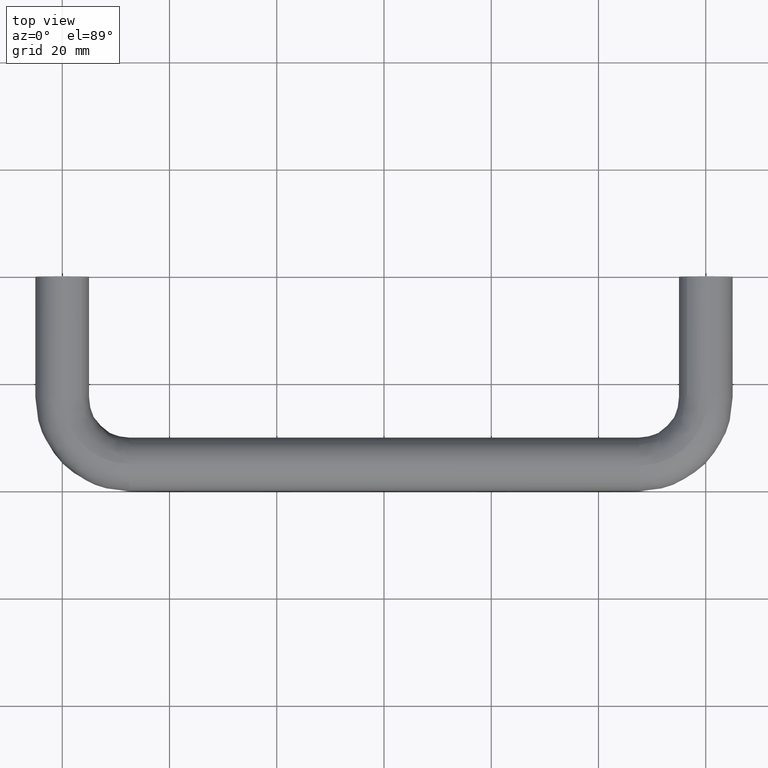
[diagram: clean part render]
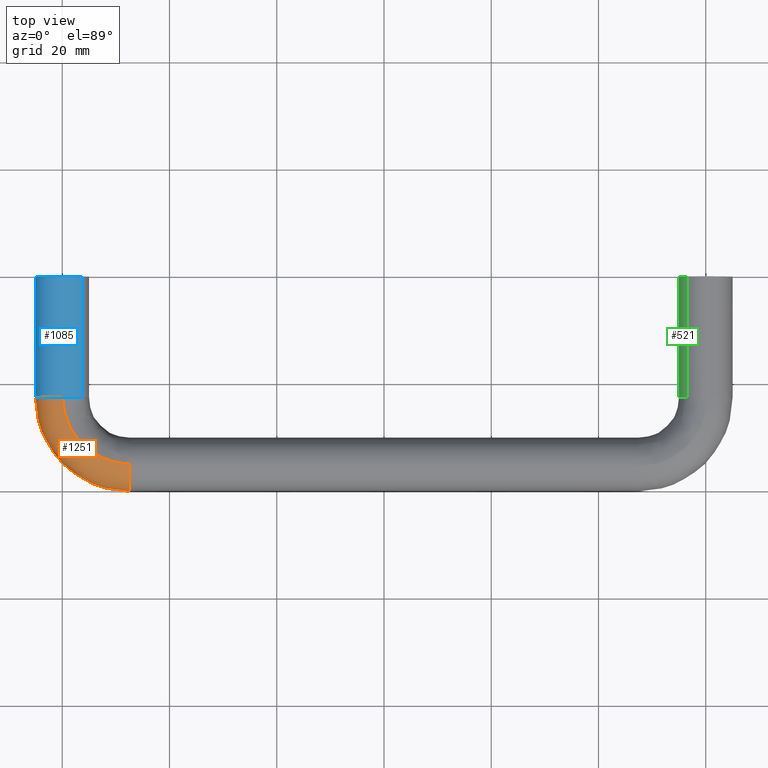
[diagram: same view with three faces highlighted in distinct colors, each labeled with its STEP entity id]
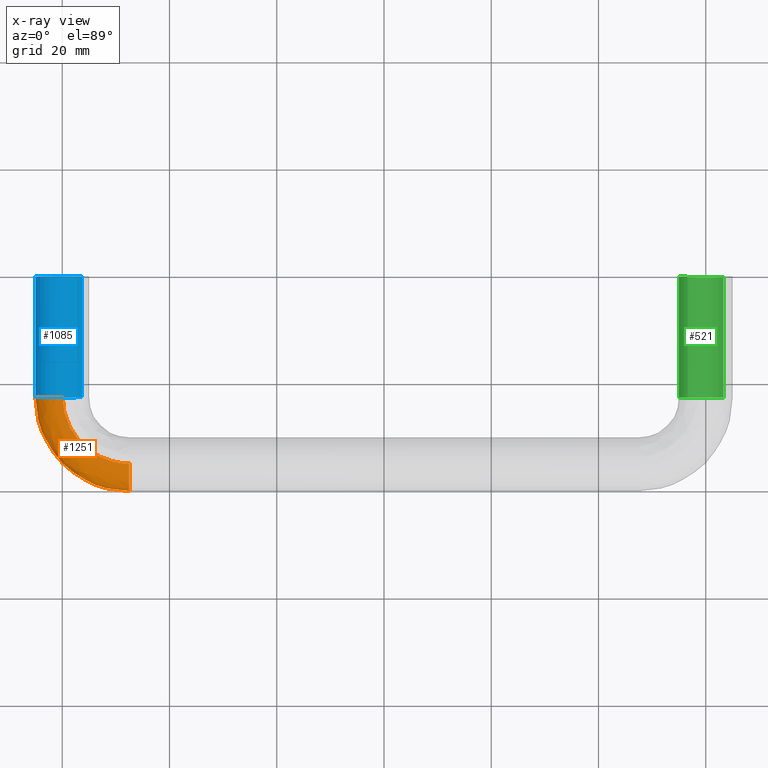
[diagram: x-ray of the same camera — body ghosted, the three highlighted faces saturated]
A machine part, top view with three faces highlighted in distinct colors.
The next image is the same camera in x-ray (body ghosted, the three faces saturated) — at least one of them is partly hidden behind the body in this view.
Their STEP definitions:

[orange] entity #1251 — the highlighted face is a freeform B-spline surface patch.
#676=CARTESIAN_POINT('',(12.499999999521330,-34.937169799960493,4.999605221011253));
#677=VERTEX_POINT('',#676);
#691=CARTESIAN_POINT('',(12.500000000000000,-40.0,0.0));
#692=VERTEX_POINT('',#691);
#693=CARTESIAN_POINT('',(12.499999999521329,-34.937169799960486,4.999605221011254));
#694=CARTESIAN_POINT('',(12.500000000000002,-34.968583659417725,5.0));
#695=CARTESIAN_POINT('',(12.500000000000000,-35.0,5.0));
#696=CARTESIAN_POINT('',(12.500000000000000,-39.999999999999993,5.000000000000001));
#697=CARTESIAN_POINT('',(12.500000000000000,-40.0,0.0));
#705=(BOUNDED_CURVE()B_SPLINE_CURVE(2,(#693,#694,#695,#696,#697),.UNSPECIFIED.,.F.,.U.)B_SPLINE_CURVE_WITH_KNOTS((3,2,3),(0.747784295877917,0.750000000000000,1.0),.UNSPECIFIED.)CURVE()GEOMETRIC_REPRESENTATION_ITEM()RATIONAL_B_SPLINE_CURVE((0.994854295543175,0.997404141150979,1.0,0.707106781186548,1.0))REPRESENTATION_ITEM(''));
#706=EDGE_CURVE('',#677,#692,#705,.T.);
#708=CARTESIAN_POINT('',(12.499999942683930,-35.348666308206170,-4.987828365683995));
#709=VERTEX_POINT('',#708);
#710=CARTESIAN_POINT('',(12.500000000000000,-40.0,0.0));
#711=CARTESIAN_POINT('',(12.500000000000000,-40.0,-4.662684142007196));
#712=CARTESIAN_POINT('',(12.499999942683930,-35.348666308206170,-4.987828365683995));
#720=(BOUNDED_CURVE()B_SPLINE_CURVE(2,(#710,#711,#712),.UNSPECIFIED.,.F.,.U.)B_SPLINE_CURVE_WITH_KNOTS((3,3),(0.0,0.237833683064406),.UNSPECIFIED.)CURVE()GEOMETRIC_REPRESENTATION_ITEM()RATIONAL_B_SPLINE_CURVE((1.0,0.721360508100031,0.972879869046176))REPRESENTATION_ITEM(''));
#721=EDGE_CURVE('',#692,#709,#720,.T.);
#987=CARTESIAN_POINT('',(-0.348666262534672,-22.500000001229829,-4.987828368876588));
#988=VERTEX_POINT('',#987);
#1004=CARTESIAN_POINT('',(-4.999999999999997,-22.500000000000000,0.0));
#1005=VERTEX_POINT('',#1004);
#1006=CARTESIAN_POINT('',(-4.999999999999997,-22.500000000000000,0.0));
#1007=CARTESIAN_POINT('',(-4.999999999999997,-22.499999999999996,-4.662684227604138));
#1008=CARTESIAN_POINT('',(-0.348666262534672,-22.500000001229818,-4.987828368876588));
#1016=(BOUNDED_CURVE()B_SPLINE_CURVE(2,(#1006,#1007,#1008),.UNSPECIFIED.,.F.,.U.)B_SPLINE_CURVE_WITH_KNOTS((3,3),(0.0,0.237833686213952),.UNSPECIFIED.)CURVE()GEOMETRIC_REPRESENTATION_ITEM()RATIONAL_B_SPLINE_CURVE((1.0,0.721360504410108,0.972879875707737))REPRESENTATION_ITEM(''));
#1017=EDGE_CURVE('',#1005,#988,#1016,.T.);
#1019=CARTESIAN_POINT('',(0.062830201473882,-22.500000001219831,4.999605220993228));
#1020=VERTEX_POINT('',#1019);
#1021=CARTESIAN_POINT('',(0.062830201473882,-22.500000001219831,4.999605220993228));
#1022=CARTESIAN_POINT('',(0.031416342016811,-22.499999999999996,5.0));
#1023=CARTESIAN_POINT('',(2.755364E-015,-22.500000000000000,5.0));
#1024=CARTESIAN_POINT('',(-4.999999999999997,-22.500000000000000,5.000000000000001));
#1025=CARTESIAN_POINT('',(-4.999999999999997,-22.500000000000000,0.0));
#1033=(BOUNDED_CURVE()B_SPLINE_CURVE(2,(#1021,#1022,#1023,#1024,#1025),.UNSPECIFIED.,.F.,.U.)B_SPLINE_CURVE_WITH_KNOTS((3,2,3),(0.747784295777005,0.750000000000000,1.0),.UNSPECIFIED.)CURVE()GEOMETRIC_REPRESENTATION_ITEM()RATIONAL_B_SPLINE_CURVE((0.994854295310916,0.997404141032754,1.0,0.707106781186548,1.0))REPRESENTATION_ITEM(''));
#1034=EDGE_CURVE('',#1020,#1005,#1033,.T.);
#1190=CARTESIAN_POINT('',(-0.246043949258327,-21.616309953103229,-4.992863210513725));
#1191=CARTESIAN_POINT('',(-1.262163877998453,-36.272477367141803,-4.992863210513724));
#1192=CARTESIAN_POINT('',(13.393238219508005,-35.245378375655214,-4.992863210513724));
#1193=CARTESIAN_POINT('',(-0.281871426032919,-21.613826014968602,-4.990352735467731));
#1194=CARTESIAN_POINT('',(-1.300847536133477,-36.311190015157472,-4.990352735467730));
#1195=CARTESIAN_POINT('',(13.395748996317737,-35.281203981588710,-4.990352735467731));
#1196=CARTESIAN_POINT('',(-5.016890184537566,-21.285544630923653,-4.658564189198486));
#1197=CARTESIAN_POINT('',(-6.413343960855873,-41.427517790591814,-4.658564189198486));
#1198=CARTESIAN_POINT('',(13.727577424182968,-40.015975486631149,-4.658564189198487));
#1199=CARTESIAN_POINT('',(-4.957698358406729,-21.289648431900471,0.062830199416762));
#1200=CARTESIAN_POINT('',(-6.349433337709312,-41.363559272250576,0.062830199416762));
#1201=CARTESIAN_POINT('',(13.723429282093315,-39.956786751382239,0.062830199416762));
#1202=CARTESIAN_POINT('',(-4.895018620471904,-21.293994051668907,5.062435420435840));
#1203=CARTESIAN_POINT('',(-6.281756744978027,-41.295831962073215,5.062435420435841));
#1204=CARTESIAN_POINT('',(13.719036708386920,-39.894110286461306,5.062435420435841));
#1205=CARTESIAN_POINT('',(0.127900431983083,-21.642235717137265,4.999160709382378));
#1206=CARTESIAN_POINT('',(-0.858408495042908,-35.868419406278036,4.999160709382379));
#1207=CARTESIAN_POINT('',(13.367032330478839,-34.871453521061454,4.999160709382377));
#1208=CARTESIAN_POINT('',(0.162980768599282,-21.644667855644936,4.998718795399718));
#1209=CARTESIAN_POINT('',(-0.820531539390674,-35.830514065295255,4.998718795399716));
#1210=CARTESIAN_POINT('',(13.364573912985259,-34.836375016272143,4.998718795399718));
#1218=(BOUNDED_SURFACE()B_SPLINE_SURFACE(2,2,((#1190,#1193,#1196,#1199,#1202,#1205,#1208),(#1191,#1194,#1197,#1200,#1203,#1206,#1209),(#1192,#1195,#1198,#1201,#1204,#1207,#1210)),.UNSPECIFIED.,.F.,.F.,.U.)B_SPLINE_SURFACE_WITH_KNOTS((3,3),(3,1,2,1,3),(0.0,31.890571891225530),(0.0,0.083144012797420,8.036044410360839,16.320315657822729,16.403445808023800),.UNSPECIFIED.)GEOMETRIC_REPRESENTATION_ITEM()RATIONAL_B_SPLINE_SURFACE(((0.905744013994426,0.903251925356143,0.662386295974072,0.921487970695580,0.651590392860676,0.924196311056984,0.926904651418389),(0.591078773956204,0.589452463791138,0.432266152092013,0.601353110281207,0.425220862167464,0.603120543988238,0.604887977695268),(0.895737609904557,0.893273053157798,0.655068439230114,0.911307631818076,0.644391806205615,0.913986051199987,0.916664470581897)))REPRESENTATION_ITEM('')SURFACE());
#1219=ORIENTED_EDGE('',*,*,#721,.F.);
#1220=ORIENTED_EDGE('',*,*,#706,.F.);
#1221=CARTESIAN_POINT('',(0.062830201473882,-22.500000001219835,4.999605220993228));
#1222=CARTESIAN_POINT('',(0.062830201856423,-34.937169799625885,4.999605221019079));
#1223=CARTESIAN_POINT('',(12.499999999521334,-34.937169799960486,4.999605221011254));
#1231=(BOUNDED_CURVE()B_SPLINE_CURVE(2,(#1221,#1222,#1223),.UNSPECIFIED.,.F.,.U.)B_SPLINE_CURVE_WITH_KNOTS((3,3),(-1.747842683464338,-0.278273131025898),.UNSPECIFIED.)CURVE()GEOMETRIC_REPRESENTATION_ITEM()RATIONAL_B_SPLINE_CURVE((0.893710737890176,0.628668022939517,0.884455039427532))REPRESENTATION_ITEM(''));
#1232=EDGE_CURVE('',#1020,#677,#1231,.T.);
#1233=ORIENTED_EDGE('',*,*,#1232,.F.);
#1234=ORIENTED_EDGE('',*,*,#1034,.T.);
#1235=ORIENTED_EDGE('',*,*,#1017,.T.);
#1236=CARTESIAN_POINT('',(-0.348666262534672,-22.500000001229818,-4.987828368876588));
#1237=CARTESIAN_POINT('',(-0.348666255417557,-35.348666143245083,-4.987828369202160));
#1238=CARTESIAN_POINT('',(12.499999942683937,-35.348666308206177,-4.987828365683996));
#1246=(BOUNDED_CURVE()B_SPLINE_CURVE(2,(#1236,#1237,#1238),.UNSPECIFIED.,.F.,.U.)B_SPLINE_CURVE_WITH_KNOTS((3,3),(-1.747842683469275,-0.278273140169127),.UNSPECIFIED.)CURVE()GEOMETRIC_REPRESENTATION_ITEM()RATIONAL_B_SPLINE_CURVE((0.873607430522281,0.614526640808866,0.864559928471628))REPRESENTATION_ITEM(''));
#1247=EDGE_CURVE('',#988,#709,#1246,.T.);
#1248=ORIENTED_EDGE('',*,*,#1247,.T.);
#1249=EDGE_LOOP('',(#1219,#1220,#1233,#1234,#1235,#1248));
#1250=FACE_OUTER_BOUND('',#1249,.T.);
#1251=ADVANCED_FACE('',(#1250),#1218,.T.);

[blue] entity #1085 — the highlighted face is a freeform B-spline surface patch.
#888=CARTESIAN_POINT('',(2.421098661299536,-22.500000000000000,-4.374732137200357));
#889=VERTEX_POINT('',#888);
#905=CARTESIAN_POINT('',(2.421098661298299,-6.025501E-017,-4.374732137201040));
#906=VERTEX_POINT('',#905);
#907=CARTESIAN_POINT('',(2.421098661298299,-6.025501E-017,-4.374732137201040));
#908=CARTESIAN_POINT('',(2.421098661299536,-22.500000000000000,-4.374732137200357));
#909=QUASI_UNIFORM_CURVE('',1,(#907,#908),.UNSPECIFIED.,.F.,.U.);
#910=EDGE_CURVE('',#906,#889,#909,.T.);
#927=CARTESIAN_POINT('',(3.686388444170081,0.0,3.377949117242961));
#928=VERTEX_POINT('',#927);
#942=CARTESIAN_POINT('',(3.686388599247899,-22.500000000324619,3.377948947709638));
#943=VERTEX_POINT('',#942);
#944=CARTESIAN_POINT('',(3.686388444170081,0.0,3.377949117242961));
#945=CARTESIAN_POINT('',(3.686388599247899,-22.500000000324619,3.377948947709638));
#946=QUASI_UNIFORM_CURVE('',1,(#944,#945),.UNSPECIFIED.,.F.,.U.);
#947=EDGE_CURVE('',#928,#943,#946,.T.);
#965=CARTESIAN_POINT('',(3.686386684050619,0.562500000030747,3.377951038078300));
#966=CARTESIAN_POINT('',(0.308435645972318,0.562500000030747,7.064337722128919));
#967=CARTESIAN_POINT('',(-3.377951038078300,0.562500000030746,3.686386684050619));
#968=CARTESIAN_POINT('',(-7.064337722128919,0.562500000030746,0.308435645972318));
#969=CARTESIAN_POINT('',(-3.686386684050619,0.562500000030746,-3.377951038078300));
#970=CARTESIAN_POINT('',(-1.025271042433037,0.562500000030747,-6.282049160103976));
#971=CARTESIAN_POINT('',(2.421098661271897,0.562500000030747,-4.374732137215650));
#972=CARTESIAN_POINT('',(3.686386684050622,-23.076562501261339,3.377951038078300));
#973=CARTESIAN_POINT('',(0.308435645972321,-23.076562501261339,7.064337722128919));
#974=CARTESIAN_POINT('',(-3.377951038078297,-23.076562501261339,3.686386684050619));
#975=CARTESIAN_POINT('',(-7.064337722128916,-23.076562501261339,0.308435645972318));
#976=CARTESIAN_POINT('',(-3.686386684050615,-23.076562501261339,-3.377951038078300));
#977=CARTESIAN_POINT('',(-1.025271042433033,-23.076562501261350,-6.282049160103976));
#978=CARTESIAN_POINT('',(2.421098661271898,-23.076562501261346,-4.374732137215650));
#986=(BOUNDED_SURFACE()B_SPLINE_SURFACE(2,1,((#965,#972),(#966,#973),(#967,#974),(#968,#975),(#969,#976),(#970,#977),(#971,#978)),.UNSPECIFIED.,.F.,.F.,.U.)B_SPLINE_SURFACE_WITH_KNOTS((3,2,2,3),(2,2),(0.0,8.284271247461899,16.568542494923800,23.527330342791789),(0.0,23.639062501292099),.UNSPECIFIED.)GEOMETRIC_REPRESENTATION_ITEM()RATIONAL_B_SPLINE_SURFACE(((1.0,1.0),(0.707106781186548,0.707106781186548),(1.0,1.0),(0.707106781186548,0.707106781186548),(1.0,1.0),(0.753969696196700,0.753969696196700),(0.921270302782944,0.921270302782944)))REPRESENTATION_ITEM('')SURFACE());
#987=CARTESIAN_POINT('',(-0.348666262534672,-22.500000001229829,-4.987828368876588));
#988=VERTEX_POINT('',#987);
#989=CARTESIAN_POINT('',(-0.348666262534672,-22.500000001229825,-4.987828368876588));
#990=CARTESIAN_POINT('',(-0.174545584048076,-22.500000000000004,-5.000000000000001));
#991=CARTESIAN_POINT('',(2.755364E-015,-22.500000000000000,-5.0));
#992=CARTESIAN_POINT('',(1.291289514141870,-22.500000000000004,-5.000000000000001));
#993=CARTESIAN_POINT('',(2.421098661299535,-22.499999999999996,-4.374732137200357));
#1001=(BOUNDED_CURVE()B_SPLINE_CURVE(2,(#989,#990,#991,#992,#993),.UNSPECIFIED.,.F.,.U.)B_SPLINE_CURVE_WITH_KNOTS((3,2,3),(0.237833686213952,0.250000000000000,0.332484288972585),.UNSPECIFIED.)CURVE()GEOMETRIC_REPRESENTATION_ITEM()RATIONAL_B_SPLINE_CURVE((0.972879875707737,0.985746276776439,1.0,0.903363644405122,0.870495137451408))REPRESENTATION_ITEM(''));
#1002=EDGE_CURVE('',#988,#889,#1001,.T.);
#1003=ORIENTED_EDGE('',*,*,#1002,.F.);
#1004=CARTESIAN_POINT('',(-4.999999999999997,-22.500000000000000,0.0));
#1005=VERTEX_POINT('',#1004);
#1006=CARTESIAN_POINT('',(-4.999999999999997,-22.500000000000000,0.0));
#1007=CARTESIAN_POINT('',(-4.999999999999997,-22.499999999999996,-4.662684227604138));
#1008=CARTESIAN_POINT('',(-0.348666262534672,-22.500000001229818,-4.987828368876588));
#1016=(BOUNDED_CURVE()B_SPLINE_CURVE(2,(#1006,#1007,#1008),.UNSPECIFIED.,.F.,.U.)B_SPLINE_CURVE_WITH_KNOTS((3,3),(0.0,0.237833686213952),.UNSPECIFIED.)CURVE()GEOMETRIC_REPRESENTATION_ITEM()RATIONAL_B_SPLINE_CURVE((1.0,0.721360504410108,0.972879875707737))REPRESENTATION_ITEM(''));
#1017=EDGE_CURVE('',#1005,#988,#1016,.T.);
#1018=ORIENTED_EDGE('',*,*,#1017,.F.);
#1019=CARTESIAN_POINT('',(0.062830201473882,-22.500000001219831,4.999605220993228));
#1020=VERTEX_POINT('',#1019);
#1021=CARTESIAN_POINT('',(0.062830201473882,-22.500000001219831,4.999605220993228));
#1022=CARTESIAN_POINT('',(0.031416342016811,-22.499999999999996,5.0));
#1023=CARTESIAN_POINT('',(2.755364E-015,-22.500000000000000,5.0));
#1024=CARTESIAN_POINT('',(-4.999999999999997,-22.500000000000000,5.000000000000001));
#1025=CARTESIAN_POINT('',(-4.999999999999997,-22.500000000000000,0.0));
#1033=(BOUNDED_CURVE()B_SPLINE_CURVE(2,(#1021,#1022,#1023,#1024,#1025),.UNSPECIFIED.,.F.,.U.)B_SPLINE_CURVE_WITH_KNOTS((3,2,3),(0.747784295777005,0.750000000000000,1.0),.UNSPECIFIED.)CURVE()GEOMETRIC_REPRESENTATION_ITEM()RATIONAL_B_SPLINE_CURVE((0.994854295310916,0.997404141032754,1.0,0.707106781186548,1.0))REPRESENTATION_ITEM(''));
#1034=EDGE_CURVE('',#1020,#1005,#1033,.T.);
#1035=ORIENTED_EDGE('',*,*,#1034,.F.);
#1036=CARTESIAN_POINT('',(3.686388599247899,-22.500000000324626,3.377948947709638));
#1037=CARTESIAN_POINT('',(2.225318335695636,-22.500000000685549,4.972429161364217));
#1038=CARTESIAN_POINT('',(0.062830201473882,-22.500000001219828,4.999605220993228));
#1046=(BOUNDED_CURVE()B_SPLINE_CURVE(2,(#1036,#1037,#1038),.UNSPECIFIED.,.F.,.U.)B_SPLINE_CURVE_WITH_KNOTS((3,3),(0.618415123476215,0.747784295777005),.UNSPECIFIED.)CURVE()GEOMETRIC_REPRESENTATION_ITEM()RATIONAL_B_SPLINE_CURVE((0.853959791404858,0.845975475157291,0.994854295310916))REPRESENTATION_ITEM(''));
#1047=EDGE_CURVE('',#943,#1020,#1046,.T.);
#1048=ORIENTED_EDGE('',*,*,#1047,.F.);
#1049=ORIENTED_EDGE('',*,*,#947,.F.);
#1050=CARTESIAN_POINT('',(-5.0,0.0,0.0));
#1051=VERTEX_POINT('',#1050);
#1052=CARTESIAN_POINT('',(3.686388444170081,0.0,3.377949117242962));
#1053=CARTESIAN_POINT('',(2.200054209319135,0.0,5.0));
#1054=CARTESIAN_POINT('',(0.0,0.0,5.0));
#1055=CARTESIAN_POINT('',(-5.000000000000001,0.0,5.000000000000001));
#1056=CARTESIAN_POINT('',(-5.0,0.0,0.0));
#1064=(BOUNDED_CURVE()B_SPLINE_CURVE(2,(#1052,#1053,#1054,#1055,#1056),.UNSPECIFIED.,.F.,.U.)B_SPLINE_CURVE_WITH_KNOTS((3,2,3),(0.618415130424519,0.750000000000000,1.0),.UNSPECIFIED.)CURVE()GEOMETRIC_REPRESENTATION_ITEM()RATIONAL_B_SPLINE_CURVE((0.853959790547198,0.845838736011556,1.0,0.707106781186548,1.0))REPRESENTATION_ITEM(''));
#1065=EDGE_CURVE('',#928,#1051,#1064,.T.);
#1066=ORIENTED_EDGE('',*,*,#1065,.T.);
#1067=CARTESIAN_POINT('',(-5.0,0.0,0.0));
#1068=CARTESIAN_POINT('',(-5.000000000000001,0.0,-5.000000000000001));
#1069=CARTESIAN_POINT('',(0.0,0.0,-5.0));
#1070=CARTESIAN_POINT('',(1.291289514140363,0.0,-5.0));
#1071=CARTESIAN_POINT('',(2.421098661298299,-6.025501E-017,-4.374732137201040));
#1079=(BOUNDED_CURVE()B_SPLINE_CURVE(2,(#1067,#1068,#1069,#1070,#1071),.UNSPECIFIED.,.F.,.U.)B_SPLINE_CURVE_WITH_KNOTS((3,2,3),(0.0,0.250000000000000,0.332484288972498),.UNSPECIFIED.)CURVE()GEOMETRIC_REPRESENTATION_ITEM()RATIONAL_B_SPLINE_CURVE((1.0,0.707106781186548,1.0,0.903363644405224,0.870495137451477))REPRESENTATION_ITEM(''));
#1080=EDGE_CURVE('',#1051,#906,#1079,.T.);
#1081=ORIENTED_EDGE('',*,*,#1080,.T.);
#1082=ORIENTED_EDGE('',*,*,#910,.T.);
#1083=EDGE_LOOP('',(#1003,#1018,#1035,#1048,#1049,#1066,#1081,#1082));
#1084=FACE_OUTER_BOUND('',#1083,.T.);
#1085=ADVANCED_FACE('',(#1084),#986,.T.);

[green] entity #521 — the highlighted face is a freeform B-spline surface patch.
#408=CARTESIAN_POINT('',(123.294847860799650,-23.062500000621192,-3.760847986050986));
#409=CARTESIAN_POINT('',(119.743278128228520,-23.062500000621188,-6.872348897346878));
#410=CARTESIAN_POINT('',(116.433747754229100,-23.062500000621188,-3.504546321499253));
#411=CARTESIAN_POINT('',(112.929201432729840,-23.062500000621188,0.061705924271653));
#412=CARTESIAN_POINT('',(116.495453678500790,-23.062500000621188,3.566252245770907));
#413=CARTESIAN_POINT('',(123.294847860799650,0.576562500015544,-3.760847986050986));
#414=CARTESIAN_POINT('',(119.743278128228520,0.576562500015544,-6.872348897346878));
#415=CARTESIAN_POINT('',(116.433747754229100,0.576562500015545,-3.504546321499253));
#416=CARTESIAN_POINT('',(112.929201432729840,0.576562500015545,0.061705924271653));
#417=CARTESIAN_POINT('',(116.495453678500790,0.576562500015545,3.566252245770907));
#425=(BOUNDED_SURFACE()B_SPLINE_SURFACE(2,1,((#408,#413),(#409,#414),(#410,#415),(#411,#416),(#412,#417)),.UNSPECIFIED.,.F.,.F.,.U.)B_SPLINE_SURFACE_WITH_KNOTS((3,2,3),(2,2),(0.0,7.952900397563423,16.237171645025320),(0.0,23.639062500636740),.UNSPECIFIED.)GEOMETRIC_REPRESENTATION_ITEM()RATIONAL_B_SPLINE_SURFACE(((0.977505800795127,0.977505800795127),(0.718822509939086,0.718822509939086),(1.0,1.0),(0.707106781186548,0.707106781186548),(1.0,1.0)))REPRESENTATION_ITEM('')SURFACE());
#426=CARTESIAN_POINT('',(123.294846396518910,-22.499999999999961,-3.760849268894289));
#427=VERTEX_POINT('',#426);
#428=CARTESIAN_POINT('',(119.937169799793200,-22.500000000606040,-4.999605221009151));
#429=VERTEX_POINT('',#428);
#430=CARTESIAN_POINT('',(123.294846396518930,-22.499999999999957,-3.760849268894289));
#431=CARTESIAN_POINT('',(121.880437783707560,-22.499999999999996,-5.0));
#432=CARTESIAN_POINT('',(120.0,-22.500000000000000,-5.0));
#433=CARTESIAN_POINT('',(119.968583659250430,-22.500000000000000,-5.000000000000001));
#434=CARTESIAN_POINT('',(119.937169799793270,-22.500000000606033,-4.999605221009151));
#442=(BOUNDED_CURVE()B_SPLINE_CURVE(2,(#430,#431,#432,#433,#434),.UNSPECIFIED.,.F.,.U.)B_SPLINE_CURVE_WITH_KNOTS((3,2,3),(0.134954778888341,0.250000000000000,0.252215704133851),.UNSPECIFIED.)CURVE()GEOMETRIC_REPRESENTATION_ITEM()RATIONAL_B_SPLINE_CURVE((0.854482191287481,0.865216139518003,1.0,0.997404141137193,0.994854295516091))REPRESENTATION_ITEM(''));
#443=EDGE_CURVE('',#427,#429,#442,.T.);
#444=ORIENTED_EDGE('',*,*,#443,.T.);
#445=CARTESIAN_POINT('',(115.0,-22.500000000000000,0.0));
#446=VERTEX_POINT('',#445);
#447=CARTESIAN_POINT('',(119.937169799793270,-22.500000000606033,-4.999605221009151));
#448=CARTESIAN_POINT('',(114.999999999999970,-22.500000000000004,-4.937559647976037));
#449=CARTESIAN_POINT('',(115.0,-22.500000000000000,0.0));
#457=(BOUNDED_CURVE()B_SPLINE_CURVE(2,(#447,#448,#449),.UNSPECIFIED.,.F.,.U.)B_SPLINE_CURVE_WITH_KNOTS((3,3),(0.252215704133851,0.500000000000000),.UNSPECIFIED.)CURVE()GEOMETRIC_REPRESENTATION_ITEM()RATIONAL_B_SPLINE_CURVE((0.994854295516091,0.709702640049355,1.0))REPRESENTATION_ITEM(''));
#458=EDGE_CURVE('',#429,#446,#457,.T.);
#459=ORIENTED_EDGE('',*,*,#458,.T.);
#460=CARTESIAN_POINT('',(116.495453924891810,-22.500000000000011,3.566252487898725));
#461=VERTEX_POINT('',#460);
#462=CARTESIAN_POINT('',(115.0,-22.500000000000000,0.0));
#463=CARTESIAN_POINT('',(114.999999999999990,-22.499999999999996,2.096674414984332));
#464=CARTESIAN_POINT('',(116.495453924891820,-22.500000000000007,3.566252487898725));
#472=(BOUNDED_CURVE()B_SPLINE_CURVE(2,(#462,#463,#464),.UNSPECIFIED.,.F.,.U.)B_SPLINE_CURVE_WITH_KNOTS((3,3),(0.500000000000000,0.626316778441131),.UNSPECIFIED.)CURVE()GEOMETRIC_REPRESENTATION_ITEM()RATIONAL_B_SPLINE_CURVE((1.0,0.852010688688925,0.853569641766144))REPRESENTATION_ITEM(''));
#473=EDGE_CURVE('',#446,#461,#472,.T.);
#474=ORIENTED_EDGE('',*,*,#473,.T.);
#475=CARTESIAN_POINT('',(116.495453921923100,1.532108E-014,3.566252484981392));
#476=VERTEX_POINT('',#475);
#477=CARTESIAN_POINT('',(116.495453924891810,-22.500000000000011,3.566252487898725));
#478=CARTESIAN_POINT('',(116.495453921923100,1.532108E-014,3.566252484981392));
#479=QUASI_UNIFORM_CURVE('',1,(#477,#478),.UNSPECIFIED.,.F.,.U.);
#480=EDGE_CURVE('',#461,#476,#479,.T.);
#481=ORIENTED_EDGE('',*,*,#480,.T.);
#482=CARTESIAN_POINT('',(115.0,1.387779E-014,0.0));
#483=VERTEX_POINT('',#482);
#484=CARTESIAN_POINT('',(115.0,1.387779E-014,0.0));
#485=CARTESIAN_POINT('',(114.999999999999990,1.387779E-014,2.096674410090224));
#486=CARTESIAN_POINT('',(116.495453921923160,1.532108E-014,3.566252484981392));
#494=(BOUNDED_CURVE()B_SPLINE_CURVE(2,(#484,#485,#486),.UNSPECIFIED.,.F.,.U.)B_SPLINE_CURVE_WITH_KNOTS((3,3),(0.500000000000000,0.626316778189914),.UNSPECIFIED.)CURVE()GEOMETRIC_REPRESENTATION_ITEM()RATIONAL_B_SPLINE_CURVE((1.0,0.852010688983244,0.853569641759943))REPRESENTATION_ITEM(''));
#495=EDGE_CURVE('',#483,#476,#494,.T.);
#496=ORIENTED_EDGE('',*,*,#495,.F.);
#497=CARTESIAN_POINT('',(123.294846414156400,1.511645E-014,-3.760849253442222));
#498=VERTEX_POINT('',#497);
#499=CARTESIAN_POINT('',(123.294846414156420,1.511645E-014,-3.760849253442221));
#500=CARTESIAN_POINT('',(121.880437797090280,1.387779E-014,-5.0));
#501=CARTESIAN_POINT('',(120.0,1.387779E-014,-5.0));
#502=CARTESIAN_POINT('',(114.999999999999970,1.387779E-014,-5.000000000000001));
#503=CARTESIAN_POINT('',(115.0,1.387779E-014,0.0));
#511=(BOUNDED_CURVE()B_SPLINE_CURVE(2,(#499,#500,#501,#502,#503),.UNSPECIFIED.,.F.,.U.)B_SPLINE_CURVE_WITH_KNOTS((3,2,3),(0.134954778179939,0.250000000000000,0.500000000000000),.UNSPECIFIED.)CURVE()GEOMETRIC_REPRESENTATION_ITEM()RATIONAL_B_SPLINE_CURVE((0.854482191155291,0.865216138688059,1.0,0.707106781186548,1.0))REPRESENTATION_ITEM(''));
#512=EDGE_CURVE('',#498,#483,#511,.T.);
#513=ORIENTED_EDGE('',*,*,#512,.F.);
#514=CARTESIAN_POINT('',(123.294846396518910,-22.499999999999961,-3.760849268894289));
#515=CARTESIAN_POINT('',(123.294846414156400,1.511645E-014,-3.760849253442222));
#516=QUASI_UNIFORM_CURVE('',1,(#514,#515),.UNSPECIFIED.,.F.,.U.);
#517=EDGE_CURVE('',#427,#498,#516,.T.);
#518=ORIENTED_EDGE('',*,*,#517,.F.);
#519=EDGE_LOOP('',(#444,#459,#474,#481,#496,#513,#518));
#520=FACE_OUTER_BOUND('',#519,.T.);
#521=ADVANCED_FACE('',(#520),#425,.T.);